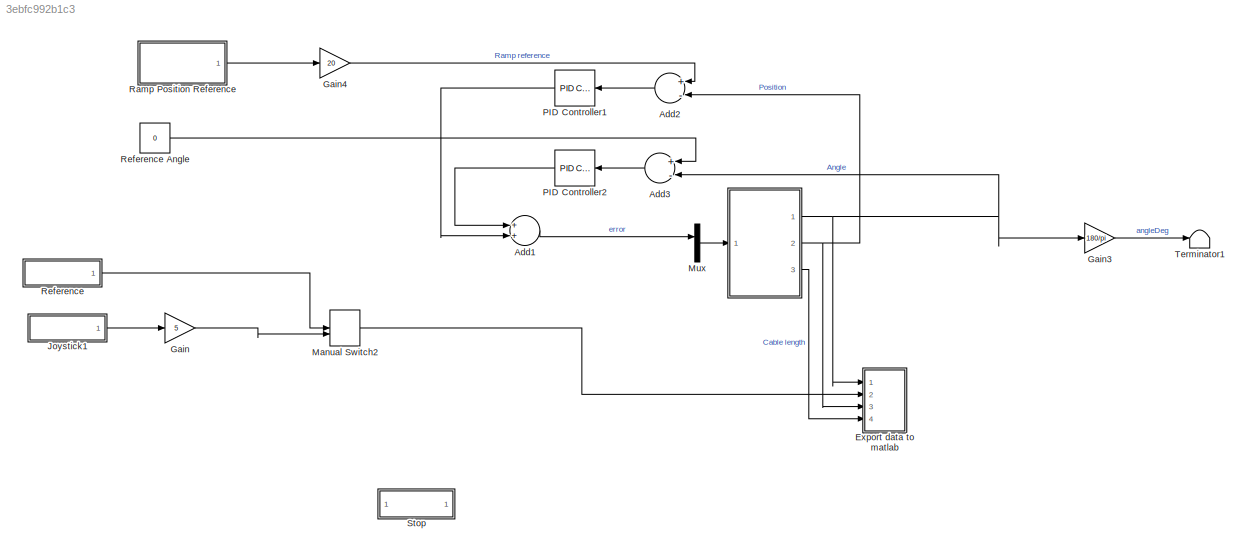
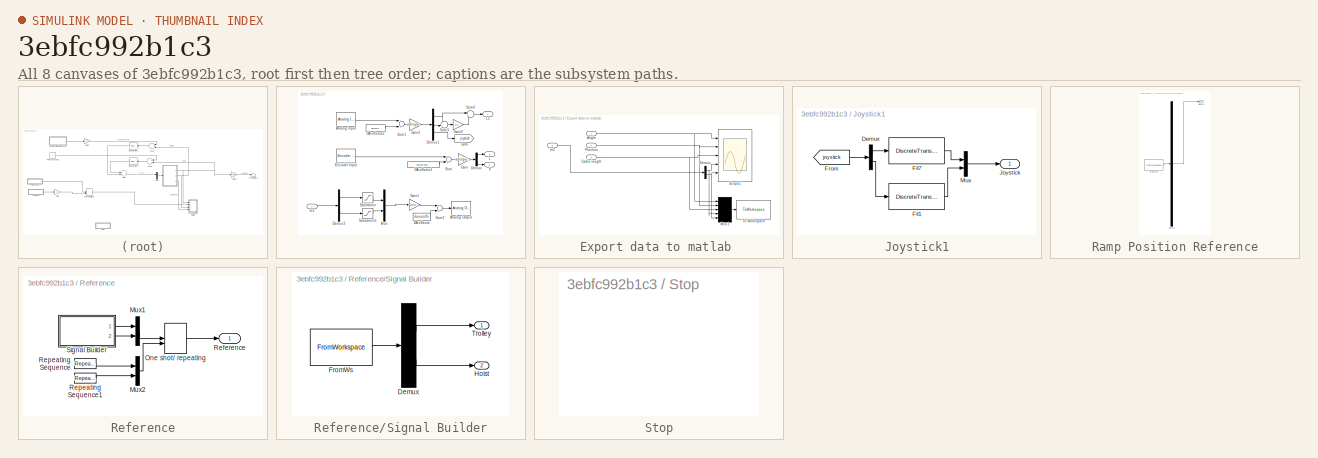
[diagram: thumbnail index - all 8 canvases of the model, root first then tree order]
MODEL slx_3ebfc992b1c3
KIND model
CONFIG AbsTol = auto
CONFIG EnableMultiTasking = on
CONFIG FixedStep = auto
CONFIG MaxStep = auto
CONFIG MinStep = auto
CONFIG PostLoadFcn = plot_timeseries(Simulation_results);
CONFIG RelTol = 1e-3
CONFIG SampleTimeConstraint = Unconstrained
CONFIG Solver = ode45
CONFIG SolverName = ode45
CONFIG StartTime = 0.0
CONFIG StopTime = 30
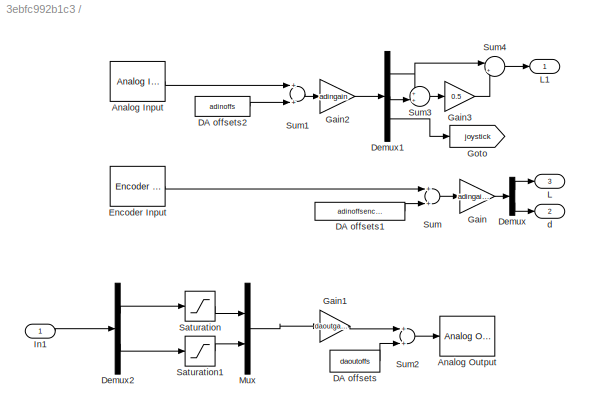
BLOCK [SubSystem]  
  InitFcn = hwinit
  LoadFcn = hwinit
  Ports = [1, 3]
  RequestExecContextInheritance = off
  ShowPortLabels = none
BLOCK [Reference]  /Analog Input  REF=sldrtlib/Analog Input
  AttributesFormatString = Humusoft\nMF634 [auto]
  Ports = [0, 1]
  SourceBlock = sldrtlib/Analog Input
  SourceType = Simulink Desktop Real-Time Analog Input
BLOCK [Reference]  /Analog Output  REF=sldrtlib/Analog Output
  AttributesFormatString = Humusoft\nMF634 [auto]
  Ports = [1]
  SourceBlock = sldrtlib/Analog Output
  SourceType = Simulink Desktop Real-Time Analog Output
BLOCK [Constant]  /DA offsets
  Value = daoutoffs
BLOCK [Constant]  /DA offsets1
  Value = adinoffsencoders
BLOCK [Constant]  /DA offsets2
  Value = adinoffs
BLOCK [Demux]  /Demux
  DisplayOption = bar
  Outputs = 2
  Ports = [1, 2]
BLOCK [Demux]  /Demux1
  DisplayOption = bar
  Outputs = [1 1 2]
  Ports = [1, 3]
BLOCK [Demux]  /Demux2
  DisplayOption = bar
  Outputs = 2
  Ports = [1, 2]
BLOCK [Reference]  /Encoder Input  REF=sldrtlib/Encoder Input
  AttributesFormatString = Humusoft\nMF634 [auto]
  Ports = [0, 1]
  SourceBlock = sldrtlib/Encoder Input
  SourceType = Simulink Desktop Real-Time Encoder Input
BLOCK [Gain]  /Gain
  Gain = adingainencoders
BLOCK [Gain]  /Gain1
  Gain = daoutgain
BLOCK [Gain]  /Gain2
  Gain = adingain
BLOCK [Gain]  /Gain3
  Gain = 0.5
  OutDataTypeStr = Inherit: Inherit via internal rule
  ParamDataTypeStr = Inherit: Inherit via internal rule
  SaturateOnIntegerOverflow = off
BLOCK [Goto]  /Goto
  GotoTag = joystick
  TagVisibility = global
BLOCK [Inport]  /In1
  IconDisplay = Port number
BLOCK [Outport]  /L
  IconDisplay = Port number
  Port = 3
  Tag = Position
BLOCK [Outport]  /L1
  IconDisplay = Port number
  Tag = Position
BLOCK [Mux]  /Mux
  DisplayOption = bar
  Inputs = 2
  Ports = [2, 1]
BLOCK [Saturate]  /Saturation
  InputPortMap = u0
  LowerLimit = -10
  Ports = [1, 1]
  UpperLimit = 10
BLOCK [Saturate]  /Saturation1
  InputPortMap = u0
  LowerLimit = -10
  Ports = [1, 1]
  UpperLimit = 10
BLOCK [Sum]  /Sum
  Ports = [2, 1]
BLOCK [Sum]  /Sum1
  Ports = [2, 1]
BLOCK [Sum]  /Sum2
  Ports = [2, 1]
BLOCK [Sum]  /Sum3
  IconShape = round
  InputSameDT = off
  Inputs = ++|
  OutDataTypeStr = Inherit: Inherit via internal rule
  Ports = [2, 1]
  SaturateOnIntegerOverflow = off
BLOCK [Sum]  /Sum4
  IconShape = round
  InputSameDT = off
  Inputs = |+-
  OutDataTypeStr = Inherit: Inherit via internal rule
  Ports = [2, 1]
  SaturateOnIntegerOverflow = off
BLOCK [Outport]  /d
  IconDisplay = Port number
  Port = 2
  Tag = Cable length
BLOCK [Constant]  Reference Angle
  Value = 0
BLOCK [Sum] Add1
  InputSameDT = off
  OutDataTypeStr = Inherit: Inherit via internal rule
  Ports = [2, 1]
  SaturateOnIntegerOverflow = off
BLOCK [Sum] Add2
  InputSameDT = off
  Inputs = +-
  OutDataTypeStr = Inherit: Inherit via internal rule
  Ports = [2, 1]
  SaturateOnIntegerOverflow = off
BLOCK [Sum] Add3
  InputSameDT = off
  Inputs = +-
  OutDataTypeStr = Inherit: Inherit via internal rule
  Ports = [2, 1]
  SaturateOnIntegerOverflow = off
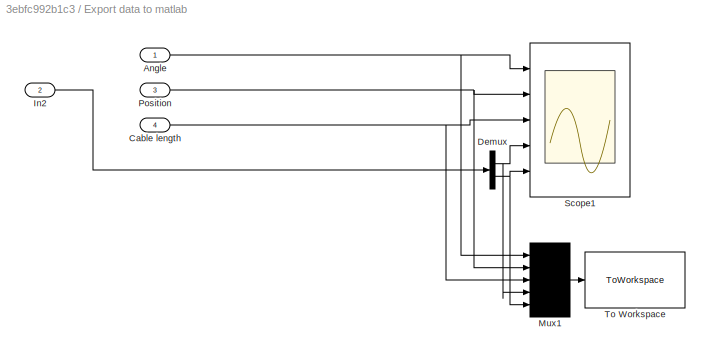
BLOCK [SubSystem] Export data to matlab 
  Ports = [4]
  RequestExecContextInheritance = off
BLOCK [Inport] Export data to matlab /Angle
  IconDisplay = Port number
BLOCK [Inport] Export data to matlab /Cable length
  IconDisplay = Port number
  Port = 4
BLOCK [Demux] Export data to matlab /Demux
  DisplayOption = bar
  Outputs = 2
  Ports = [1, 2]
BLOCK [Inport] Export data to matlab /In2
  IconDisplay = Port number
  Port = 2
BLOCK [Mux] Export data to matlab /Mux1
  DisplayOption = bar
  Inputs = 5
  Ports = [5, 1]
BLOCK [Inport] Export data to matlab /Position
  IconDisplay = Port number
  Port = 3
BLOCK [Scope] Export data to matlab /Scope1
  Floating = off
  NumInputPorts = 5
  Ports = [5]
  ScopeSpecificationString = Simulink.scopes.TimeScopeBlockCfg('CurrentConfiguration', extmgr.ConfigurationSet(extmgr.Configuration('Core','General UI',true),extmgr.Configuration('Core','Source UI',true),extmgr.Configuration('Sources','WiredSimulink',true,'DataLoggingVariableName','angle','DataLoggingSaveFormat','Structure','DataLoggingMaxPoints','15000','DataLoggingLimitDataPoints',true,'DataLoggingDecimation','1','DataLoggi...<+5223ch>
BLOCK [ToWorkspace] Export data to matlab /To Workspace
  FixptAsFi = on
  MaxDataPoints = inf
  Ports = [1]
  SampleTime = -1
  Save2DSignal = 3-D array (concatenate along third dimension)
  SaveFormat = Timeseries
  VariableName = Simulation_results
BLOCK [Gain] Gain
  Gain = 5
  OutDataTypeStr = Inherit: Inherit via internal rule
  ParamDataTypeStr = Inherit: Inherit via internal rule
  SaturateOnIntegerOverflow = off
BLOCK [Gain] Gain3
  Gain = 180/pi
  OutDataTypeStr = Inherit: Inherit via internal rule
  ParamDataTypeStr = Inherit: Inherit via internal rule
  SaturateOnIntegerOverflow = off
BLOCK [Gain] Gain4
  Gain = 20
  OutDataTypeStr = Inherit: Inherit via internal rule
  ParamDataTypeStr = Inherit: Inherit via internal rule
  SaturateOnIntegerOverflow = off
BLOCK [SubSystem] Joystick1
  Ports = [0, 1]
  RequestExecContextInheritance = off
BLOCK [Demux] Joystick1/Demux
  DisplayOption = bar
  Outputs = 2
  Ports = [1, 2]
BLOCK [DiscreteTransferFcn] Joystick1/Fil1
  Denominator = [1 -0.9691]
  InputPortMap = u0
  Numerator = [0.0155 0.0155]
  Ports = [1, 1]
  SampleTime = h
BLOCK [DiscreteTransferFcn] Joystick1/Fil7
  Denominator = [1 -0.9691]
  InputPortMap = u0
  Numerator = [0.0155 0.0155]
  Ports = [1, 1]
  SampleTime = h
BLOCK [From] Joystick1/From
  GotoTag = joystick
  TagVisibility = global
BLOCK [Outport] Joystick1/Joystick
  IconDisplay = Port number
BLOCK [Mux] Joystick1/Mux
  DisplayOption = bar
  Inputs = 2
  Ports = [2, 1]
BLOCK [ManualSwitch] Manual Switch2
BLOCK [Mux] Mux
  DisplayOption = bar
  Inputs = 2
  Ports = [2, 1]
BLOCK [Reference] PID Controller1  REF=simulink/Continuous/PID Controller
  Ports = [1, 1]
  SourceBlock = simulink/Continuous/PID Controller
  SourceType = PID 1dof
BLOCK [Reference] PID Controller2  REF=simulink/Continuous/PID Controller
  Ports = [1, 1]
  SourceBlock = simulink/Continuous/PID Controller
  SourceType = PID 1dof
BLOCK [SubSystem] Ramp Position Reference
  ClipboardFcn = sigbuilder_block('clipboard');
  CloseFcn = sigbuilder_block('close');
  ContinueFcn = sigbuilder_block('continue');
  CopyFcn = sigbuilder_block('copy');
  DeleteFcn = sigbuilder_block('delete');
  LoadFcn = sigbuilder_block('load');
  MaskHideContents = on
  ModelCloseFcn = sigbuilder_block('modelClose');
  NameChangeFcn = sigbuilder_block('namechange');
  OpenFcn = sigbuilder_block('open',[780.75 38.25 550.5 399.75 ]);
  PauseFcn = sigbuilder_block('pause');
  Ports = [0, 1]
  PreSaveFcn = sigbuilder_block('preSave');
  RequestExecContextInheritance = off
  StartFcn = sigbuilder_block('start');
  StopFcn = sigbuilder_block('stop');
  Tag = STV Subsys
BLOCK [Demux] Ramp Position Reference/Demux
  Outputs = 1
  Ports = [1, 1]
  Tag = STV Demux
BLOCK [FromWorkspace] Ramp Position Reference/FromWs
  SampleTime = 0
  Tag = STV FromWs
  VariableName = tuvar
  ZeroCross = on
BLOCK [Outport] Ramp Position Reference/Signal 1
  IconDisplay = Port number
  Tag = STV Outport
BLOCK [SubSystem] Reference
  Ports = [0, 1]
  RequestExecContextInheritance = off
BLOCK [Mux] Reference/Mux1
  DisplayOption = bar
  Inputs = 2
  Ports = [2, 1]
BLOCK [Mux] Reference/Mux2
  DisplayOption = bar
  Inputs = 2
  Ports = [2, 1]
BLOCK [ManualSwitch] Reference/One shot// repeating
  CurrentSetting = 0
BLOCK [Outport] Reference/Reference
  IconDisplay = Port number
BLOCK [Reference] Reference/Repeating Sequence  REF=simulink/Sources/Repeating
Sequence
  Ports = [0, 1]
  SourceBlock = simulink/Sources/Repeating\nSequence
  SourceType = Repeating table
BLOCK [Reference] Reference/Repeating Sequence1  REF=simulink/Sources/Repeating
Sequence
  Ports = [0, 1]
  SourceBlock = simulink/Sources/Repeating\nSequence
  SourceType = Repeating table
BLOCK [SubSystem] Reference/Signal Builder
  ClipboardFcn = sigbuilder_block('clipboard');
  CloseFcn = sigbuilder_block('close');
  ContinueFcn = sigbuilder_block('continue')
  CopyFcn = sigbuilder_block('copy');
  DeleteFcn = sigbuilder_block('delete');
  LoadFcn = sigbuilder_block('load',[50.25 82.5 519.75 399.75 ]);
  MaskHideContents = on
  ModelCloseFcn = sigbuilder_block('modelClose');
  NameChangeFcn = sigbuilder_block('namechange');
  OpenFcn = sigbuilder_block('open',[50.25 82.5 519.75 399.75 ]);
  PauseFcn = sigbuilder_block('pause')
  Ports = [0, 2]
  PreSaveFcn = sigbuilder_block('preSave');
  RequestExecContextInheritance = off
  StartFcn = sigbuilder_block('start');
  StopFcn = sigbuilder_block('stop');
  Tag = STV Subsys
BLOCK [Demux] Reference/Signal Builder/Demux
  Outputs = 2
  Ports = [1, 2]
  Tag = STV Demux
BLOCK [FromWorkspace] Reference/Signal Builder/FromWs
  SampleTime = 0
  Tag = STV FromWs
  VariableName = tuvar
BLOCK [Outport] Reference/Signal Builder/Hoist
  IconDisplay = Port number
  Port = 2
  Tag = STV Outport
BLOCK [Outport] Reference/Signal Builder/Trolley
  IconDisplay = Port number
  Tag = STV Outport
BLOCK [SubSystem] Stop
  Ports = []
  RequestExecContextInheritance = off
BLOCK [Terminator] Terminator1
LINE  /Analog Input:1 ->  /Sum1:1
LINE  /DA offsets1:1 ->  /Sum:2
LINE  /DA offsets2:1 ->  /Sum1:2
LINE  /DA offsets:1 ->  /Sum2:2
NET  /Demux1:1 ->  /Sum3:1,  /Sum4:1
LINE  /Demux1:2 ->  /Sum3:2
LINE  /Demux1:3 ->  /Goto:1
LINE  /Demux2:1 ->  /Saturation:1
LINE  /Demux2:2 ->  /Saturation1:1
LINE  /Demux:1 ->  /L:1
LINE  /Demux:2 ->  /d:1
LINE  /Encoder Input:1 ->  /Sum:1
LINE  /Gain1:1 ->  /Sum2:1
LINE  /Gain2:1 ->  /Demux1:1
LINE  /Gain3:1 ->  /Sum4:2
LINE  /Gain:1 ->  /Demux:1
LINE  /In1:1 ->  /Demux2:1
LINE  /Mux:1 ->  /Gain1:1
LINE  /Saturation1:1 ->  /Mux:2
LINE  /Saturation:1 ->  /Mux:1
LINE  /Sum1:1 ->  /Gain2:1
LINE  /Sum2:1 ->  /Analog Output:1
LINE  /Sum3:1 ->  /Gain3:1
LINE  /Sum4:1 ->  /L1:1
LINE  /Sum:1 ->  /Gain:1
NET  :1 -> Add3:2, Export data to matlab :1, Gain3:1
NET  :2 -> Add2:2, Export data to matlab :3
LINE  :3 -> Export data to matlab :4
LINE  Reference Angle:1 -> Add3:1
LINE Add1:1 -> Mux:1
LINE Add2:1 -> PID Controller1:1
LINE Add3:1 -> PID Controller2:1
NET Export data to matlab /Angle:1 -> Export data to matlab /Mux1:1, Export data to matlab /Scope1:1
NET Export data to matlab /Cable length:1 -> Export data to matlab /Mux1:3, Export data to matlab /Scope1:3
NET Export data to matlab /Demux:1 -> Export data to matlab /Mux1:4, Export data to matlab /Scope1:4
NET Export data to matlab /Demux:2 -> Export data to matlab /Mux1:5, Export data to matlab /Scope1:5
LINE Export data to matlab /In2:1 -> Export data to matlab /Demux:1
LINE Export data to matlab /Mux1:1 -> Export data to matlab /To Workspace:1
NET Export data to matlab /Position:1 -> Export data to matlab /Mux1:2, Export data to matlab /Scope1:2
LINE Gain3:1 -> Terminator1:1
LINE Gain4:1 -> Add2:1
LINE Gain:1 -> Manual Switch2:2
LINE Joystick1/Demux:1 -> Joystick1/Fil7:1
LINE Joystick1/Demux:2 -> Joystick1/Fil1:1
LINE Joystick1/Fil1:1 -> Joystick1/Mux:2
LINE Joystick1/Fil7:1 -> Joystick1/Mux:1
LINE Joystick1/From:1 -> Joystick1/Demux:1
LINE Joystick1/Mux:1 -> Joystick1/Joystick:1
LINE Joystick1:1 -> Gain:1
LINE Manual Switch2:1 -> Export data to matlab :2
LINE Mux:1 ->  :1
LINE PID Controller1:1 -> Add1:2
LINE PID Controller2:1 -> Add1:1
LINE Ramp Position Reference:1 -> Gain4:1
LINE Reference/Mux1:1 -> Reference/One shot// repeating:1
LINE Reference/Mux2:1 -> Reference/One shot// repeating:2
LINE Reference/One shot// repeating:1 -> Reference/Reference:1
LINE Reference/Repeating Sequence1:1 -> Reference/Mux2:2
LINE Reference/Repeating Sequence:1 -> Reference/Mux2:1
LINE Reference/Signal Builder/Demux:1 -> Reference/Signal Builder/Trolley:1
LINE Reference/Signal Builder/Demux:2 -> Reference/Signal Builder/Hoist:1
LINE Reference/Signal Builder/FromWs:1 -> Reference/Signal Builder/Demux:1
LINE Reference/Signal Builder:1 -> Reference/Mux1:1
LINE Reference/Signal Builder:2 -> Reference/Mux1:2
LINE Reference:1 -> Manual Switch2:1
note: NET lines group one-source signal fan-out (src -> all destinations, sorted); 1:1 wires keep LINE
